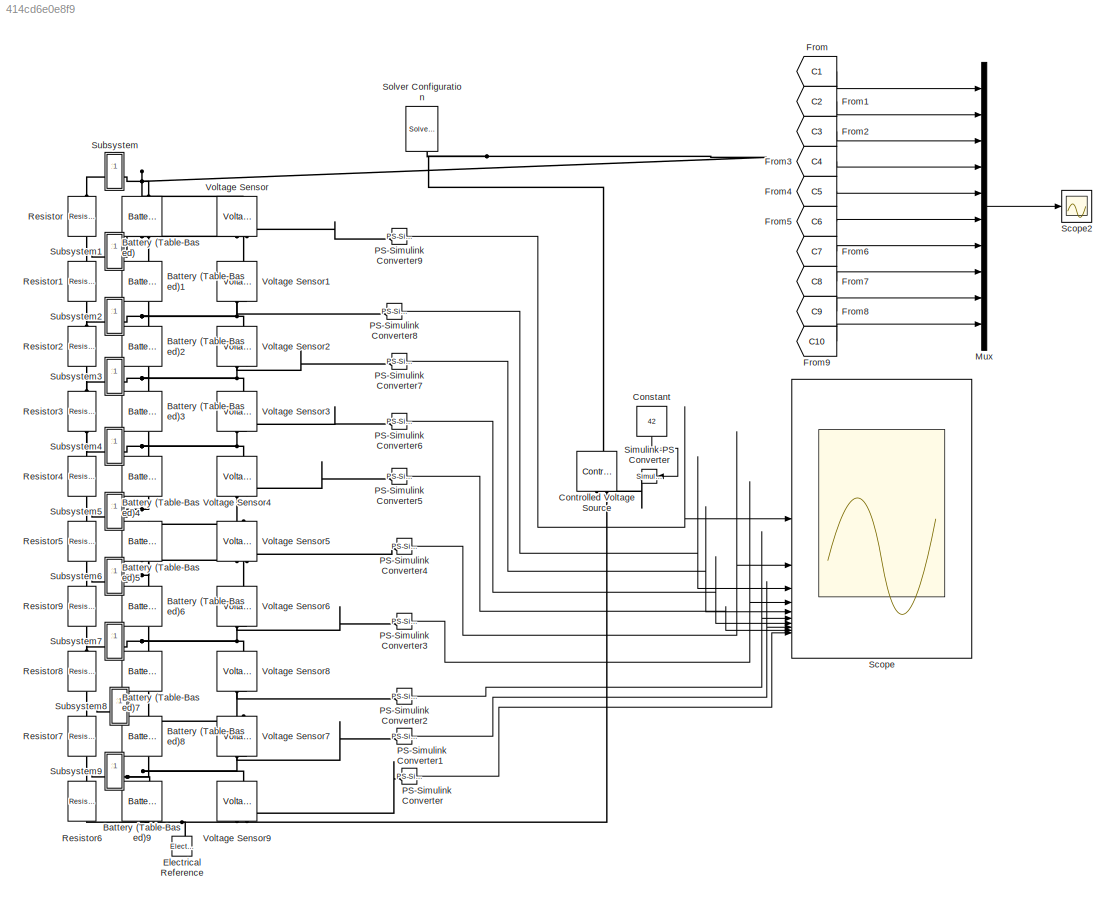
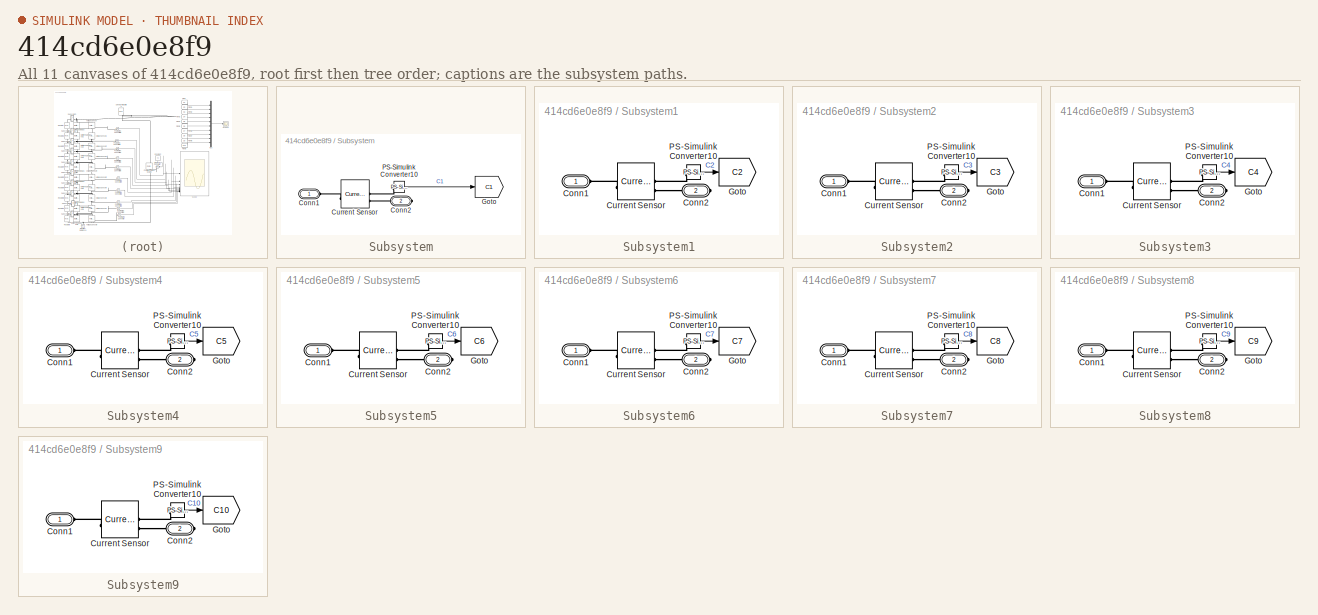
[diagram: thumbnail index - all 11 canvases of the model, root first then tree order]
MODEL slx_414cd6e0e8f9
KIND model
CONFIG FixedStep = 1
CONFIG InitFcn = R=100;
CONFIG SolverName = FixedStepAuto
CONFIG StopTime = 1500
BLOCK [Reference] Battery (Table-Based)  REF=batteryecm_lib/Battery
(Table-Based)
  AttributesFormatString = Panasonic:NCR18650BD
  LibrarySourceBlock = batt_lib/Cells/Battery\n(Table-Based)
  NameLocation = right
  SourceBlock = batteryecm_lib/Battery\n(Table-Based)
  SourceType = Battery\n(Table-Based)
BLOCK [Reference] Battery (Table-Based)1  REF=batteryecm_lib/Battery
(Table-Based)
  AttributesFormatString = Panasonic:NCR18650BD
  LibrarySourceBlock = batt_lib/Cells/Battery\n(Table-Based)
  NameLocation = right
  SourceBlock = batteryecm_lib/Battery\n(Table-Based)
  SourceType = Battery\n(Table-Based)
BLOCK [Reference] Battery (Table-Based)2  REF=batteryecm_lib/Battery
(Table-Based)
  AttributesFormatString = Panasonic:NCR18650BD
  LibrarySourceBlock = batt_lib/Cells/Battery\n(Table-Based)
  NameLocation = right
  SourceBlock = batteryecm_lib/Battery\n(Table-Based)
  SourceType = Battery\n(Table-Based)
BLOCK [Reference] Battery (Table-Based)3  REF=batteryecm_lib/Battery
(Table-Based)
  AttributesFormatString = Panasonic:NCR18650BD
  LibrarySourceBlock = batt_lib/Cells/Battery\n(Table-Based)
  NameLocation = right
  SourceBlock = batteryecm_lib/Battery\n(Table-Based)
  SourceType = Battery\n(Table-Based)
BLOCK [Reference] Battery (Table-Based)4  REF=batteryecm_lib/Battery
(Table-Based)
  AttributesFormatString = Panasonic:NCR18650BD
  LibrarySourceBlock = batt_lib/Cells/Battery\n(Table-Based)
  NameLocation = right
  SourceBlock = batteryecm_lib/Battery\n(Table-Based)
  SourceType = Battery\n(Table-Based)
BLOCK [Reference] Battery (Table-Based)5  REF=batteryecm_lib/Battery
(Table-Based)
  AttributesFormatString = Panasonic:NCR18650BD
  LibrarySourceBlock = batt_lib/Cells/Battery\n(Table-Based)
  NameLocation = right
  SourceBlock = batteryecm_lib/Battery\n(Table-Based)
  SourceType = Battery\n(Table-Based)
BLOCK [Reference] Battery (Table-Based)6  REF=batteryecm_lib/Battery
(Table-Based)
  AttributesFormatString = Panasonic:NCR18650BD
  LibrarySourceBlock = batt_lib/Cells/Battery\n(Table-Based)
  NameLocation = right
  SourceBlock = batteryecm_lib/Battery\n(Table-Based)
  SourceType = Battery\n(Table-Based)
BLOCK [Reference] Battery (Table-Based)7  REF=batteryecm_lib/Battery
(Table-Based)
  AttributesFormatString = Panasonic:NCR18650BD
  LibrarySourceBlock = batt_lib/Cells/Battery\n(Table-Based)
  NameLocation = right
  SourceBlock = batteryecm_lib/Battery\n(Table-Based)
  SourceType = Battery\n(Table-Based)
BLOCK [Reference] Battery (Table-Based)8  REF=batteryecm_lib/Battery
(Table-Based)
  AttributesFormatString = Panasonic:NCR18650BD
  LibrarySourceBlock = batt_lib/Cells/Battery\n(Table-Based)
  NameLocation = right
  SourceBlock = batteryecm_lib/Battery\n(Table-Based)
  SourceType = Battery\n(Table-Based)
BLOCK [Reference] Battery (Table-Based)9  REF=batteryecm_lib/Battery
(Table-Based)
  AttributesFormatString = Panasonic:NCR18650BD
  LibrarySourceBlock = batt_lib/Cells/Battery\n(Table-Based)
  NameLocation = right
  SourceBlock = batteryecm_lib/Battery\n(Table-Based)
  SourceType = Battery\n(Table-Based)
BLOCK [Constant] Constant
  NameLocation = left
  Value = 42
BLOCK [Reference] Controlled Voltage Source  REF=fl_lib/Electrical/Electrical Sources/Controlled Voltage
Source
  NameLocation = right
  SourceBlock = fl_lib/Electrical/Electrical Sources/Controlled Voltage\nSource
  SourceType = Controlled Voltage\nSource
BLOCK [Reference] Electrical Reference  REF=fl_lib/Electrical/Electrical Elements/Electrical Reference
  NameLocation = right
  SourceBlock = fl_lib/Electrical/Electrical Elements/Electrical Reference
  SourceType = Electrical Reference
BLOCK [From] From
  GotoTag = C1
  TagVisibility = global
BLOCK [From] From1
  GotoTag = C2
  TagVisibility = global
BLOCK [From] From2
  GotoTag = C3
  TagVisibility = global
BLOCK [From] From3
  GotoTag = C4
  TagVisibility = global
BLOCK [From] From4
  GotoTag = C5
  TagVisibility = global
BLOCK [From] From5
  GotoTag = C6
  TagVisibility = global
BLOCK [From] From6
  GotoTag = C7
  TagVisibility = global
BLOCK [From] From7
  GotoTag = C8
  TagVisibility = global
BLOCK [From] From8
  GotoTag = C9
  TagVisibility = global
BLOCK [From] From9
  GotoTag = C10
  TagVisibility = global
BLOCK [Mux] Mux
  DisplayOption = bar
  Inputs = 10
BLOCK [Reference] PS-Simulink Converter  REF=nesl_utility/PS-Simulink
Converter
  SourceBlock = nesl_utility/PS-Simulink\nConverter
  SourceType = PS-Simulink\nConverter
BLOCK [Reference] PS-Simulink Converter1  REF=nesl_utility/PS-Simulink
Converter
  SourceBlock = nesl_utility/PS-Simulink\nConverter
  SourceType = PS-Simulink\nConverter
BLOCK [Reference] PS-Simulink Converter2  REF=nesl_utility/PS-Simulink
Converter
  SourceBlock = nesl_utility/PS-Simulink\nConverter
  SourceType = PS-Simulink\nConverter
BLOCK [Reference] PS-Simulink Converter3  REF=nesl_utility/PS-Simulink
Converter
  SourceBlock = nesl_utility/PS-Simulink\nConverter
  SourceType = PS-Simulink\nConverter
BLOCK [Reference] PS-Simulink Converter4  REF=nesl_utility/PS-Simulink
Converter
  SourceBlock = nesl_utility/PS-Simulink\nConverter
  SourceType = PS-Simulink\nConverter
BLOCK [Reference] PS-Simulink Converter5  REF=nesl_utility/PS-Simulink
Converter
  SourceBlock = nesl_utility/PS-Simulink\nConverter
  SourceType = PS-Simulink\nConverter
BLOCK [Reference] PS-Simulink Converter6  REF=nesl_utility/PS-Simulink
Converter
  SourceBlock = nesl_utility/PS-Simulink\nConverter
  SourceType = PS-Simulink\nConverter
BLOCK [Reference] PS-Simulink Converter7  REF=nesl_utility/PS-Simulink
Converter
  SourceBlock = nesl_utility/PS-Simulink\nConverter
  SourceType = PS-Simulink\nConverter
BLOCK [Reference] PS-Simulink Converter8  REF=nesl_utility/PS-Simulink
Converter
  SourceBlock = nesl_utility/PS-Simulink\nConverter
  SourceType = PS-Simulink\nConverter
BLOCK [Reference] PS-Simulink Converter9  REF=nesl_utility/PS-Simulink
Converter
  SourceBlock = nesl_utility/PS-Simulink\nConverter
  SourceType = PS-Simulink\nConverter
BLOCK [Reference] Resistor  REF=fl_lib/Electrical/Electrical Elements/Resistor
  NameLocation = left
  SourceBlock = fl_lib/Electrical/Electrical Elements/Resistor
  SourceType = Resistor
BLOCK [Reference] Resistor1  REF=fl_lib/Electrical/Electrical Elements/Resistor
  NameLocation = left
  SourceBlock = fl_lib/Electrical/Electrical Elements/Resistor
  SourceType = Resistor
BLOCK [Reference] Resistor2  REF=fl_lib/Electrical/Electrical Elements/Resistor
  NameLocation = left
  SourceBlock = fl_lib/Electrical/Electrical Elements/Resistor
  SourceType = Resistor
BLOCK [Reference] Resistor3  REF=fl_lib/Electrical/Electrical Elements/Resistor
  NameLocation = left
  SourceBlock = fl_lib/Electrical/Electrical Elements/Resistor
  SourceType = Resistor
BLOCK [Reference] Resistor4  REF=fl_lib/Electrical/Electrical Elements/Resistor
  NameLocation = left
  SourceBlock = fl_lib/Electrical/Electrical Elements/Resistor
  SourceType = Resistor
BLOCK [Reference] Resistor5  REF=fl_lib/Electrical/Electrical Elements/Resistor
  NameLocation = left
  SourceBlock = fl_lib/Electrical/Electrical Elements/Resistor
  SourceType = Resistor
BLOCK [Reference] Resistor6  REF=fl_lib/Electrical/Electrical Elements/Resistor
  NameLocation = left
  SourceBlock = fl_lib/Electrical/Electrical Elements/Resistor
  SourceType = Resistor
BLOCK [Reference] Resistor7  REF=fl_lib/Electrical/Electrical Elements/Resistor
  NameLocation = left
  SourceBlock = fl_lib/Electrical/Electrical Elements/Resistor
  SourceType = Resistor
BLOCK [Reference] Resistor8  REF=fl_lib/Electrical/Electrical Elements/Resistor
  NameLocation = left
  SourceBlock = fl_lib/Electrical/Electrical Elements/Resistor
  SourceType = Resistor
BLOCK [Reference] Resistor9  REF=fl_lib/Electrical/Electrical Elements/Resistor
  NameLocation = left
  SourceBlock = fl_lib/Electrical/Electrical Elements/Resistor
  SourceType = Resistor
BLOCK [Scope] Scope
  ActiveDisplayYMaximum = 4.2048824580895925
  ActiveDisplayYMinimum = 4.1370660518884108
  AxesScaling = Auto
  ContainerLayout = {"WindowBounds":[1273,65,1295,710],"ToolstripCollapsed":true,"gridDimensions":{"w":1,"h":1},"tileCount":1,"tileCoverage":1,"columnWeights":1,"rowWeights":1,"tileOccupancy":{}}
  Floating = off
  GraphicalSettings = {"Style":{"BackgroundColor":[1,1,1],"AxesColor":[1,1,1],"LabelsColor":[0.12941176470588237,0.12941176470588237,0.12941176470588237],"PreserveColors":false,"Visible":[true,true,true,true,true,true,true,true,true,true],"LineStyle":["-","-","-","-","-","-","-","-","-","-"],"LineWidth":[1.5,1.5,1.5,1.5,1.5,1.5,1.5,1.5,1.5,1.5],"BarWidth":[0.9,0.9,0.9,0.9,0.9,0.9,0.9,0.9,0.9,0.9],"LineColor":[[0,0,1],"...<+6331ch>
  LayoutDimensionsString = [2,5]
  MultipleDisplayCache = [{"MaxYLimMag":4.2048824580895925,"MaxYLimReal":4.2048824580895925,"MinYLimMag":4.1370660518884108,"MinYLimReal":4.1370660518884108,"PlotAsMagnitudePhase":false,"ShowGrid":true,"ShowLegend":false,"Title":"%<SignalLabel>","YLabel":"x(t)"},{"MaxYLimMag":4.2130045044543571,"MaxYLimReal":4.2130045044543571,"MinYLimMag":4.1953793318954524,"MinYLimReal":4.1953793318954524,"PlotAsMagnitudePhase":false,"S...<+1927ch>
  NumInputPorts = 10
  ScopeFrameLocation = window
  ShowTimeAxisLabel = on
  TimeUnits = Seconds
  Visible = on
  WasSavedAsWebScope = on
  WindowPosition = [1.000000,49.000000,1920.000000,1009.000000,]
  YLabel = x(t)
BLOCK [Scope] Scope2
  ActiveDisplayYMaximum = 0.00030224128012420158
  ActiveDisplayYMinimum = -0.00046472823949827253
  DataLoggingVariableName = ScopeData2
  Floating = off
  GraphicalSettings = {"Style":{"BackgroundColor":[0.12941176470588237,0.12941176470588237,0.12941176470588237],"AxesColor":[0.07058823529411765,0.07058823529411765,0.07058823529411765],"LabelsColor":[0.8509803921568627,0.8509803921568627,0.8509803921568627],"PreserveColors":false,"Visible":[true,true,true,true,true,true,true,true,true,true],"LineStyle":["-","-","-","-","-","-","-","-","-","-"],"LineWidth":[1.5,1.5,1.5...<+2952ch>
  MultipleDisplayCache = [{"MaxYLimMag":0.047314220227037178,"MaxYLimReal":0.00030224128012420158,"MinYLimMag":0,"MinYLimReal":-0.00046472823949827253,"PlotAsMagnitudePhase":false,"ShowGrid":true,"ShowLegend":true,"Title":"%<SignalLabel>","YLabel":""}]
  NumInputPorts = 1
  ScopeFrameLocation = window
  ShowLegend = on
  Visible = on
  WasSavedAsWebScope = on
  WindowPosition = [674.000000,-385.000000,1280.000000,729.000000,]
BLOCK [Reference] Simulink-PS Converter  REF=nesl_utility/Simulink-PS
Converter
  NameLocation = top
  SourceBlock = nesl_utility/Simulink-PS\nConverter
  SourceType = Simulink-PS\nConverter
BLOCK [Reference] Solver Configuration  REF=nesl_utility/Solver
Configuration
  NameLocation = left
  SourceBlock = nesl_utility/Solver\nConfiguration
  SourceType = Solver\nConfiguration
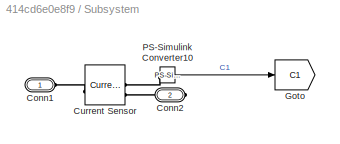
BLOCK [SubSystem] Subsystem
BLOCK [PMIOPort] Subsystem/Conn1
  Side = Left
BLOCK [PMIOPort] Subsystem/Conn2
  Port = 2
  Side = Right
BLOCK [Reference] Subsystem/Current Sensor  REF=fl_lib/Electrical/Electrical Sensors/Current Sensor
  SourceBlock = fl_lib/Electrical/Electrical Sensors/Current Sensor
  SourceType = Current Sensor
BLOCK [Goto] Subsystem/Goto
  GotoTag = C1
  TagVisibility = global
BLOCK [Reference] Subsystem/PS-Simulink Converter10  REF=nesl_utility/PS-Simulink
Converter
  SourceBlock = nesl_utility/PS-Simulink\nConverter
  SourceType = PS-Simulink\nConverter
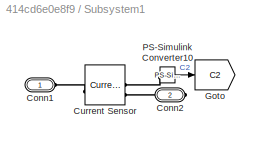
BLOCK [SubSystem] Subsystem1
BLOCK [PMIOPort] Subsystem1/Conn1
  Side = Left
BLOCK [PMIOPort] Subsystem1/Conn2
  Port = 2
  Side = Right
BLOCK [Reference] Subsystem1/Current Sensor  REF=fl_lib/Electrical/Electrical Sensors/Current Sensor
  SourceBlock = fl_lib/Electrical/Electrical Sensors/Current Sensor
  SourceType = Current Sensor
BLOCK [Goto] Subsystem1/Goto
  GotoTag = C2
  TagVisibility = global
BLOCK [Reference] Subsystem1/PS-Simulink Converter10  REF=nesl_utility/PS-Simulink
Converter
  SourceBlock = nesl_utility/PS-Simulink\nConverter
  SourceType = PS-Simulink\nConverter
BLOCK [SubSystem] Subsystem2
BLOCK [PMIOPort] Subsystem2/Conn1
  Side = Left
BLOCK [PMIOPort] Subsystem2/Conn2
  Port = 2
  Side = Right
BLOCK [Reference] Subsystem2/Current Sensor  REF=fl_lib/Electrical/Electrical Sensors/Current Sensor
  SourceBlock = fl_lib/Electrical/Electrical Sensors/Current Sensor
  SourceType = Current Sensor
BLOCK [Goto] Subsystem2/Goto
  GotoTag = C3
  TagVisibility = global
BLOCK [Reference] Subsystem2/PS-Simulink Converter10  REF=nesl_utility/PS-Simulink
Converter
  SourceBlock = nesl_utility/PS-Simulink\nConverter
  SourceType = PS-Simulink\nConverter
BLOCK [SubSystem] Subsystem3
BLOCK [PMIOPort] Subsystem3/Conn1
  Side = Left
BLOCK [PMIOPort] Subsystem3/Conn2
  Port = 2
  Side = Right
BLOCK [Reference] Subsystem3/Current Sensor  REF=fl_lib/Electrical/Electrical Sensors/Current Sensor
  SourceBlock = fl_lib/Electrical/Electrical Sensors/Current Sensor
  SourceType = Current Sensor
BLOCK [Goto] Subsystem3/Goto
  GotoTag = C4
  TagVisibility = global
BLOCK [Reference] Subsystem3/PS-Simulink Converter10  REF=nesl_utility/PS-Simulink
Converter
  SourceBlock = nesl_utility/PS-Simulink\nConverter
  SourceType = PS-Simulink\nConverter
BLOCK [SubSystem] Subsystem4
BLOCK [PMIOPort] Subsystem4/Conn1
  Side = Left
BLOCK [PMIOPort] Subsystem4/Conn2
  Port = 2
  Side = Right
BLOCK [Reference] Subsystem4/Current Sensor  REF=fl_lib/Electrical/Electrical Sensors/Current Sensor
  SourceBlock = fl_lib/Electrical/Electrical Sensors/Current Sensor
  SourceType = Current Sensor
BLOCK [Goto] Subsystem4/Goto
  GotoTag = C5
  TagVisibility = global
BLOCK [Reference] Subsystem4/PS-Simulink Converter10  REF=nesl_utility/PS-Simulink
Converter
  SourceBlock = nesl_utility/PS-Simulink\nConverter
  SourceType = PS-Simulink\nConverter
BLOCK [SubSystem] Subsystem5
BLOCK [PMIOPort] Subsystem5/Conn1
  Side = Left
BLOCK [PMIOPort] Subsystem5/Conn2
  Port = 2
  Side = Right
BLOCK [Reference] Subsystem5/Current Sensor  REF=fl_lib/Electrical/Electrical Sensors/Current Sensor
  SourceBlock = fl_lib/Electrical/Electrical Sensors/Current Sensor
  SourceType = Current Sensor
BLOCK [Goto] Subsystem5/Goto
  GotoTag = C6
  TagVisibility = global
BLOCK [Reference] Subsystem5/PS-Simulink Converter10  REF=nesl_utility/PS-Simulink
Converter
  SourceBlock = nesl_utility/PS-Simulink\nConverter
  SourceType = PS-Simulink\nConverter
BLOCK [SubSystem] Subsystem6
BLOCK [PMIOPort] Subsystem6/Conn1
  Side = Left
BLOCK [PMIOPort] Subsystem6/Conn2
  Port = 2
  Side = Right
BLOCK [Reference] Subsystem6/Current Sensor  REF=fl_lib/Electrical/Electrical Sensors/Current Sensor
  SourceBlock = fl_lib/Electrical/Electrical Sensors/Current Sensor
  SourceType = Current Sensor
BLOCK [Goto] Subsystem6/Goto
  GotoTag = C7
  TagVisibility = global
BLOCK [Reference] Subsystem6/PS-Simulink Converter10  REF=nesl_utility/PS-Simulink
Converter
  SourceBlock = nesl_utility/PS-Simulink\nConverter
  SourceType = PS-Simulink\nConverter
BLOCK [SubSystem] Subsystem7
BLOCK [PMIOPort] Subsystem7/Conn1
  Side = Left
BLOCK [PMIOPort] Subsystem7/Conn2
  Port = 2
  Side = Right
BLOCK [Reference] Subsystem7/Current Sensor  REF=fl_lib/Electrical/Electrical Sensors/Current Sensor
  SourceBlock = fl_lib/Electrical/Electrical Sensors/Current Sensor
  SourceType = Current Sensor
BLOCK [Goto] Subsystem7/Goto
  GotoTag = C8
  TagVisibility = global
BLOCK [Reference] Subsystem7/PS-Simulink Converter10  REF=nesl_utility/PS-Simulink
Converter
  SourceBlock = nesl_utility/PS-Simulink\nConverter
  SourceType = PS-Simulink\nConverter
BLOCK [SubSystem] Subsystem8
BLOCK [PMIOPort] Subsystem8/Conn1
  Side = Left
BLOCK [PMIOPort] Subsystem8/Conn2
  Port = 2
  Side = Right
BLOCK [Reference] Subsystem8/Current Sensor  REF=fl_lib/Electrical/Electrical Sensors/Current Sensor
  SourceBlock = fl_lib/Electrical/Electrical Sensors/Current Sensor
  SourceType = Current Sensor
BLOCK [Goto] Subsystem8/Goto
  GotoTag = C9
  TagVisibility = global
BLOCK [Reference] Subsystem8/PS-Simulink Converter10  REF=nesl_utility/PS-Simulink
Converter
  SourceBlock = nesl_utility/PS-Simulink\nConverter
  SourceType = PS-Simulink\nConverter
BLOCK [SubSystem] Subsystem9
BLOCK [PMIOPort] Subsystem9/Conn1
  Side = Left
BLOCK [PMIOPort] Subsystem9/Conn2
  Port = 2
  Side = Right
BLOCK [Reference] Subsystem9/Current Sensor  REF=fl_lib/Electrical/Electrical Sensors/Current Sensor
  SourceBlock = fl_lib/Electrical/Electrical Sensors/Current Sensor
  SourceType = Current Sensor
BLOCK [Goto] Subsystem9/Goto
  GotoTag = C10
  TagVisibility = global
BLOCK [Reference] Subsystem9/PS-Simulink Converter10  REF=nesl_utility/PS-Simulink
Converter
  SourceBlock = nesl_utility/PS-Simulink\nConverter
  SourceType = PS-Simulink\nConverter
BLOCK [Reference] Voltage Sensor  REF=fl_lib/Electrical/Electrical Sensors/Voltage Sensor
  NameLocation = right
  SourceBlock = fl_lib/Electrical/Electrical Sensors/Voltage Sensor
  SourceType = Voltage Sensor
BLOCK [Reference] Voltage Sensor1  REF=fl_lib/Electrical/Electrical Sensors/Voltage Sensor
  NameLocation = right
  SourceBlock = fl_lib/Electrical/Electrical Sensors/Voltage Sensor
  SourceType = Voltage Sensor
BLOCK [Reference] Voltage Sensor2  REF=fl_lib/Electrical/Electrical Sensors/Voltage Sensor
  NameLocation = right
  SourceBlock = fl_lib/Electrical/Electrical Sensors/Voltage Sensor
  SourceType = Voltage Sensor
BLOCK [Reference] Voltage Sensor3  REF=fl_lib/Electrical/Electrical Sensors/Voltage Sensor
  NameLocation = right
  SourceBlock = fl_lib/Electrical/Electrical Sensors/Voltage Sensor
  SourceType = Voltage Sensor
BLOCK [Reference] Voltage Sensor4  REF=fl_lib/Electrical/Electrical Sensors/Voltage Sensor
  NameLocation = right
  SourceBlock = fl_lib/Electrical/Electrical Sensors/Voltage Sensor
  SourceType = Voltage Sensor
BLOCK [Reference] Voltage Sensor5  REF=fl_lib/Electrical/Electrical Sensors/Voltage Sensor
  NameLocation = right
  SourceBlock = fl_lib/Electrical/Electrical Sensors/Voltage Sensor
  SourceType = Voltage Sensor
BLOCK [Reference] Voltage Sensor6  REF=fl_lib/Electrical/Electrical Sensors/Voltage Sensor
  NameLocation = right
  SourceBlock = fl_lib/Electrical/Electrical Sensors/Voltage Sensor
  SourceType = Voltage Sensor
BLOCK [Reference] Voltage Sensor7  REF=fl_lib/Electrical/Electrical Sensors/Voltage Sensor
  NameLocation = right
  SourceBlock = fl_lib/Electrical/Electrical Sensors/Voltage Sensor
  SourceType = Voltage Sensor
BLOCK [Reference] Voltage Sensor8  REF=fl_lib/Electrical/Electrical Sensors/Voltage Sensor
  NameLocation = right
  SourceBlock = fl_lib/Electrical/Electrical Sensors/Voltage Sensor
  SourceType = Voltage Sensor
BLOCK [Reference] Voltage Sensor9  REF=fl_lib/Electrical/Electrical Sensors/Voltage Sensor
  NameLocation = right
  SourceBlock = fl_lib/Electrical/Electrical Sensors/Voltage Sensor
  SourceType = Voltage Sensor
LINE Constant:1 -> Simulink-PS Converter:1
LINE From1:1 -> Mux:2
LINE From2:1 -> Mux:3
LINE From3:1 -> Mux:4
LINE From4:1 -> Mux:5
LINE From5:1 -> Mux:6
LINE From6:1 -> Mux:7
LINE From7:1 -> Mux:8
LINE From8:1 -> Mux:9
LINE From9:1 -> Mux:10
LINE From:1 -> Mux:1
LINE Mux:1 -> Scope2:1
LINE PS-Simulink Converter1:1 -> Scope:8
LINE PS-Simulink Converter2:1 -> Scope:6
LINE PS-Simulink Converter3:1 -> Scope:4
LINE PS-Simulink Converter4:1 -> Scope:2
LINE PS-Simulink Converter5:1 -> Scope:9
LINE PS-Simulink Converter6:1 -> Scope:7
LINE PS-Simulink Converter7:1 -> Scope:5
LINE PS-Simulink Converter8:1 -> Scope:3
LINE PS-Simulink Converter9:1 -> Scope:1
LINE PS-Simulink Converter:1 -> Scope:10
LINE Subsystem/PS-Simulink Converter10:1 -> Subsystem/Goto:1
LINE Subsystem1/PS-Simulink Converter10:1 -> Subsystem1/Goto:1
LINE Subsystem2/PS-Simulink Converter10:1 -> Subsystem2/Goto:1
LINE Subsystem3/PS-Simulink Converter10:1 -> Subsystem3/Goto:1
LINE Subsystem4/PS-Simulink Converter10:1 -> Subsystem4/Goto:1
LINE Subsystem5/PS-Simulink Converter10:1 -> Subsystem5/Goto:1
LINE Subsystem6/PS-Simulink Converter10:1 -> Subsystem6/Goto:1
LINE Subsystem7/PS-Simulink Converter10:1 -> Subsystem7/Goto:1
LINE Subsystem8/PS-Simulink Converter10:1 -> Subsystem8/Goto:1
LINE Subsystem9/PS-Simulink Converter10:1 -> Subsystem9/Goto:1
PNET net1: Battery (Table-Based)1:LConn1 -- Battery (Table-Based):RConn1 -- Subsystem1:RConn1 -- Voltage Sensor1:LConn1 -- Voltage Sensor:RConn2
PNET net2: Battery (Table-Based)1:RConn1 -- Battery (Table-Based)2:LConn1 -- Subsystem2:RConn1 -- Voltage Sensor1:RConn2 -- Voltage Sensor2:LConn1
PNET net3: Battery (Table-Based)2:RConn1 -- Battery (Table-Based)3:LConn1 -- Subsystem3:RConn1 -- Voltage Sensor2:RConn2 -- Voltage Sensor3:LConn1
PNET net4: Battery (Table-Based)3:RConn1 -- Battery (Table-Based)4:LConn1 -- Subsystem4:RConn1 -- Voltage Sensor3:RConn2 -- Voltage Sensor4:LConn1
PNET net5: Battery (Table-Based)4:RConn1 -- Battery (Table-Based)5:LConn1 -- Subsystem5:RConn1 -- Voltage Sensor4:RConn2 -- Voltage Sensor5:LConn1
PNET net6: Battery (Table-Based)5:RConn1 -- Battery (Table-Based)6:LConn1 -- Subsystem6:RConn1 -- Voltage Sensor5:RConn2 -- Voltage Sensor6:LConn1
PNET net7: Battery (Table-Based)6:RConn1 -- Battery (Table-Based)7:LConn1 -- Subsystem7:RConn1 -- Voltage Sensor6:RConn2 -- Voltage Sensor8:LConn1
PNET net8: Battery (Table-Based)7:RConn1 -- Battery (Table-Based)8:LConn1 -- Subsystem8:RConn1 -- Voltage Sensor7:LConn1 -- Voltage Sensor8:RConn2
PNET net9: Battery (Table-Based)8:RConn1 -- Battery (Table-Based)9:LConn1 -- Subsystem9:RConn1 -- Voltage Sensor7:RConn2 -- Voltage Sensor9:LConn1
PNET net10: Battery (Table-Based)9:RConn1 -- Controlled Voltage Source:RConn2 -- Electrical Reference:LConn1 -- Resistor6:RConn1 -- Voltage Sensor9:RConn2
PNET net11: Battery (Table-Based):LConn1 -- Controlled Voltage Source:LConn1 -- Solver Configuration:RConn1 -- Subsystem:RConn1 -- Voltage Sensor:LConn1
PLINE Controlled Voltage Source:RConn1 -- Simulink-PS Converter:RConn1
PLINE PS-Simulink Converter1:LConn1 -- Voltage Sensor7:RConn1
PLINE PS-Simulink Converter2:LConn1 -- Voltage Sensor8:RConn1
PLINE PS-Simulink Converter3:LConn1 -- Voltage Sensor6:RConn1
PLINE PS-Simulink Converter4:LConn1 -- Voltage Sensor5:RConn1
PLINE PS-Simulink Converter5:LConn1 -- Voltage Sensor4:RConn1
PLINE PS-Simulink Converter6:LConn1 -- Voltage Sensor3:RConn1
PLINE PS-Simulink Converter7:LConn1 -- Voltage Sensor2:RConn1
PLINE PS-Simulink Converter8:LConn1 -- Voltage Sensor1:RConn1
PLINE PS-Simulink Converter9:LConn1 -- Voltage Sensor:RConn1
PLINE PS-Simulink Converter:LConn1 -- Voltage Sensor9:RConn1
PNET net12: Resistor1:LConn1 -- Resistor:RConn1 -- Subsystem1:LConn1
PNET net13: Resistor1:RConn1 -- Resistor2:LConn1 -- Subsystem2:LConn1
PNET net14: Resistor2:RConn1 -- Resistor3:LConn1 -- Subsystem3:LConn1
PNET net15: Resistor3:RConn1 -- Resistor4:LConn1 -- Subsystem4:LConn1
PNET net16: Resistor4:RConn1 -- Resistor5:LConn1 -- Subsystem5:LConn1
PNET net17: Resistor5:RConn1 -- Resistor9:LConn1 -- Subsystem6:LConn1
PNET net18: Resistor6:LConn1 -- Resistor7:RConn1 -- Subsystem9:LConn1
PNET net19: Resistor7:LConn1 -- Resistor8:RConn1 -- Subsystem8:LConn1
PNET net20: Resistor8:LConn1 -- Resistor9:RConn1 -- Subsystem7:LConn1
PLINE Resistor:LConn1 -- Subsystem:LConn1
PLINE Subsystem/Conn1:RConn1 -- Subsystem/Current Sensor:LConn1
PLINE Subsystem/Conn2:RConn1 -- Subsystem/Current Sensor:RConn2
PLINE Subsystem/Current Sensor:RConn1 -- Subsystem/PS-Simulink Converter10:LConn1
PLINE Subsystem1/Conn1:RConn1 -- Subsystem1/Current Sensor:LConn1
PLINE Subsystem1/Conn2:RConn1 -- Subsystem1/Current Sensor:RConn2
PLINE Subsystem1/Current Sensor:RConn1 -- Subsystem1/PS-Simulink Converter10:LConn1
PLINE Subsystem2/Conn1:RConn1 -- Subsystem2/Current Sensor:LConn1
PLINE Subsystem2/Conn2:RConn1 -- Subsystem2/Current Sensor:RConn2
PLINE Subsystem2/Current Sensor:RConn1 -- Subsystem2/PS-Simulink Converter10:LConn1
PLINE Subsystem3/Conn1:RConn1 -- Subsystem3/Current Sensor:LConn1
PLINE Subsystem3/Conn2:RConn1 -- Subsystem3/Current Sensor:RConn2
PLINE Subsystem3/Current Sensor:RConn1 -- Subsystem3/PS-Simulink Converter10:LConn1
PLINE Subsystem4/Conn1:RConn1 -- Subsystem4/Current Sensor:LConn1
PLINE Subsystem4/Conn2:RConn1 -- Subsystem4/Current Sensor:RConn2
PLINE Subsystem4/Current Sensor:RConn1 -- Subsystem4/PS-Simulink Converter10:LConn1
PLINE Subsystem5/Conn1:RConn1 -- Subsystem5/Current Sensor:LConn1
PLINE Subsystem5/Conn2:RConn1 -- Subsystem5/Current Sensor:RConn2
PLINE Subsystem5/Current Sensor:RConn1 -- Subsystem5/PS-Simulink Converter10:LConn1
PLINE Subsystem6/Conn1:RConn1 -- Subsystem6/Current Sensor:LConn1
PLINE Subsystem6/Conn2:RConn1 -- Subsystem6/Current Sensor:RConn2
PLINE Subsystem6/Current Sensor:RConn1 -- Subsystem6/PS-Simulink Converter10:LConn1
PLINE Subsystem7/Conn1:RConn1 -- Subsystem7/Current Sensor:LConn1
PLINE Subsystem7/Conn2:RConn1 -- Subsystem7/Current Sensor:RConn2
PLINE Subsystem7/Current Sensor:RConn1 -- Subsystem7/PS-Simulink Converter10:LConn1
PLINE Subsystem8/Conn1:RConn1 -- Subsystem8/Current Sensor:LConn1
PLINE Subsystem8/Conn2:RConn1 -- Subsystem8/Current Sensor:RConn2
PLINE Subsystem8/Current Sensor:RConn1 -- Subsystem8/PS-Simulink Converter10:LConn1
PLINE Subsystem9/Conn1:RConn1 -- Subsystem9/Current Sensor:LConn1
PLINE Subsystem9/Conn2:RConn1 -- Subsystem9/Current Sensor:RConn2
PLINE Subsystem9/Current Sensor:RConn1 -- Subsystem9/PS-Simulink Converter10:LConn1
note: PNET lines group multi-terminal physical nets as a canonical sorted terminal list (undirected conserving connections); 2-terminal nets keep the pairwise PLINE form
